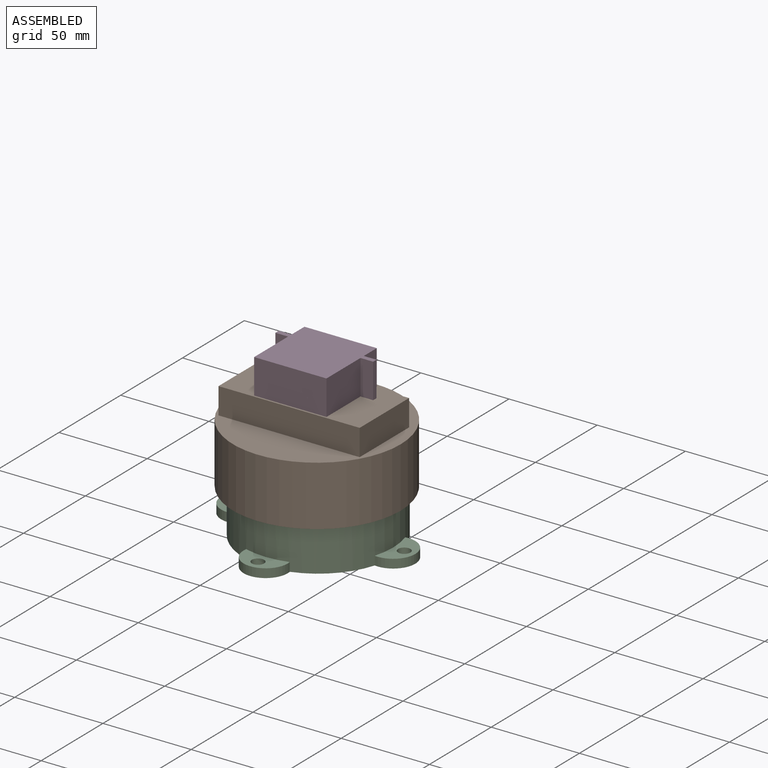
[diagram: assembled view]
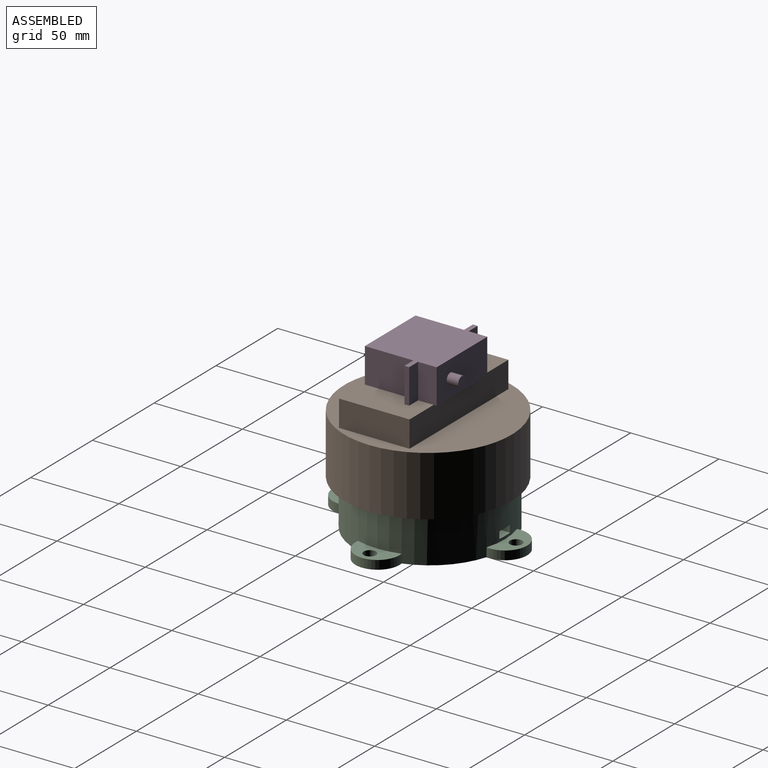
[diagram: assembled view, second angle]
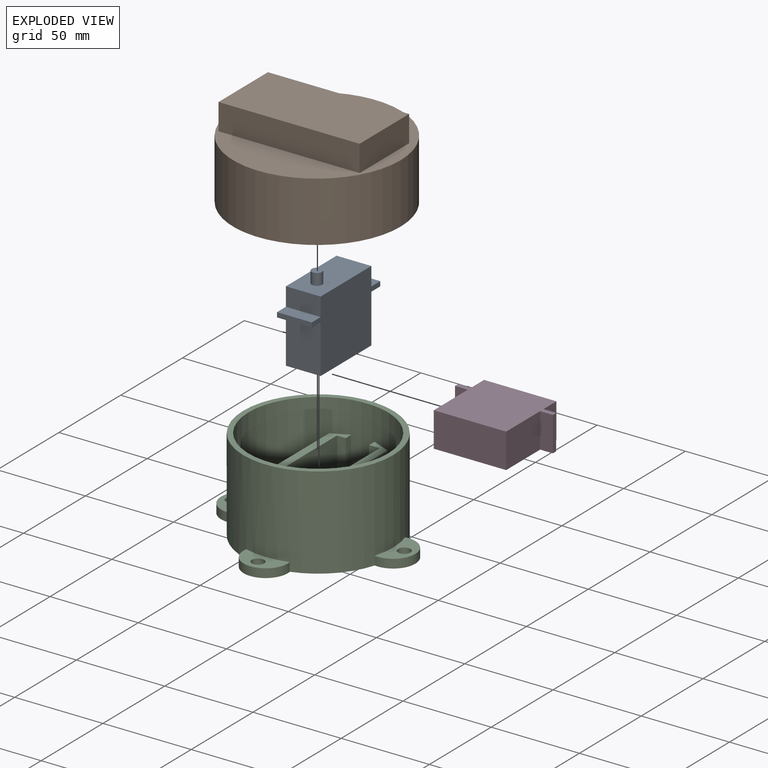
[diagram: exploded view]
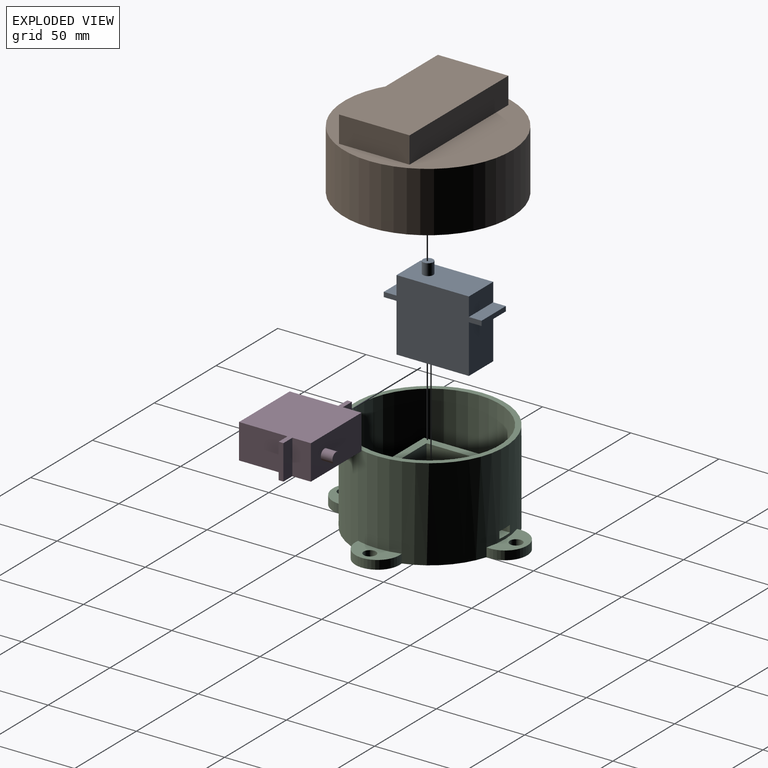
[diagram: exploded view, second angle]
ASSEMBLY  parts=4 mates=2
PART A: 18 faces, bbox 55.4x19.7x47.3 mm
  f0: plane 27.5x19.7mm, normal (-1,0,0), area 541.8mm2, adj f3,f5,f7,f11
  f1: plane 19.7x10.5mm, normal (1,0,0), area 206.8mm2, adj f3,f5,f6,f9
  f2: plane 27.5x19.7mm, normal (1,0,0), area 541.8mm2, adj f3,f5,f7,f8
  f3: plane 55.4x40.7mm, normal (0,1,0), area 1707.6mm2, adj f0,f1,f2,f4,f6,f7,f8,f9
  f4: plane 19.7x10.5mm, normal (-1,0,0), area 206.8mm2, adj f3,f5,f6,f12
  f5: plane 55.4x40.7mm, normal (0,-1,0), area 1707.6mm2, adj f0,f1,f2,f4,f6,f7,f8,f9
  f6: plane 41x19.7mm, normal (0,0,1), area 780.4mm2, adj f1,f3,f4,f5,f14
  f7: plane 41x19.7mm, normal (0,0,-1), area 780.4mm2, adj f0,f2,f3,f5,f16
  f8: plane 19.7x7.2mm, normal (0,0,-1), area 141.8mm2, adj f2,f3,f5,f10
  f9: plane 19.7x7.2mm, normal (0,0,1), area 141.8mm2, adj f1,f3,f5,f10
  f10: plane 19.7x2.7mm, normal (1,0,0), area 53.2mm2, adj f3,f5,f8,f9
  f11: plane 19.7x7.2mm, normal (0,0,-1), area 141.8mm2, adj f0,f3,f5,f13
  f12: plane 19.7x7.2mm, normal (0,0,1), area 141.8mm2, adj f3,f4,f5,f13
  f13: plane 19.7x2.7mm, normal (-1,0,0), area 53.2mm2, adj f3,f5,f11,f12
  f14: cylinder r=2.95mm len=6.6mm, axis (0,0,-1), area 122.3mm2, adj f6,f15
  f15: plane 5.9x5.9mm, normal (0,0,1), area 27.3mm2, adj f14
  f16: cylinder r=2.95mm len=5.9mm, axis (0,0,-1), area 0.2mm2, adj f7,f17
  f17: plane 5.9x5.9mm, normal (0,0,-1), area 27.3mm2, adj f16
PART B: 17 faces, bbox 95x95x49 mm
  f0: plane 90x90mm, normal (0,0,1), area 6010.7mm2, adj f4,f5,f6,f7,f8,f9,f10
  f1: plane 95x95mm, normal (0,0,-1), area 3888.2mm2, adj f2,f12,f13,f14,f15
  f2: cylinder r=47.5mm len=95mm, axis (0,0,-1), area 10147.3mm2, adj f1,f3
  f3: plane 95x95mm, normal (0,0,1), area 726.5mm2, adj f2,f4
  f4: cylinder r=45mm len=90mm, axis (0,0,1), area 8482.3mm2, adj f0,f3
  f5: plane 19.5x4mm, normal (0.2,0.98,0), area 79.6mm2, adj f0,f6,f10,f16
  f6: plane 19.5x4mm, normal (-0.2,0.98,0), area 79.6mm2, adj f0,f5,f7,f16
  f7: plane 5x4mm, normal (-1,0,0), area 20mm2, adj f0,f6,f8,f16
  f8: plane 19.5x4mm, normal (-0.2,-0.98,0), area 79.6mm2, adj f0,f7,f9,f16
  f9: plane 19.5x4mm, normal (0.2,-0.98,0), area 79.6mm2, adj f0,f8,f10,f16
  f10: plane 5x4mm, normal (1,0,0), area 20mm2, adj f0,f5,f9,f16
  f11: plane 80x40mm, normal (0,0,-1), area 3200mm2, adj f12,f13,f14,f15
  f12: plane 40x15mm, normal (-1,0,0), area 600mm2, adj f1,f11,f13,f15
  f13: plane 80x15mm, normal (0,-1,0), area 1200mm2, adj f1,f11,f12,f14
  f14: plane 40x15mm, normal (1,0,0), area 600mm2, adj f1,f11,f13,f15
  f15: plane 80x15mm, normal (0,1,0), area 1200mm2, adj f1,f11,f12,f14
  f16: plane 39x13mm, normal (0,0,1), area 351mm2, adj f5,f6,f7,f8,f9,f10
PART C: 51 faces, bbox 110x110x52.3 mm
  f0: cylinder r=42.5mm len=85mm, axis (0,0,-1), area 13430.1mm2, adj f3,f4,f7,f8,f9,f10,f40,f41
  f1: cylinder r=3mm len=8.3mm, axis (0,0,1), area 156.5mm2, adj f6,f38
  f2: cylinder r=3mm len=8.3mm, axis (0,0,1), area 156.5mm2, adj f6,f31
  f3: plane 85x85mm, normal (0,0,1), area 772.8mm2, adj f0,f5
  f4: plane 110x110mm, normal (0,0,-1), area 6433.8mm2, adj f0,f25,f26,f27,f28,f29,f30,f32
  f5: cylinder r=39.5mm len=79mm, axis (0,0,1), area 9927.4mm2, adj f3,f6
  f6: plane 79x79mm, normal (0,0,1), area 4279.8mm2, adj f1,f2,f5,f11,f12,f13,f14,f15
  f7: plane 14.89x4mm, normal (1,0,0), area 59.5mm2, adj f0,f8,f10,f24
  f8: plane 15.1x8.5mm, normal (0,0,1), area 127.7mm2, adj f0,f7,f9,f24
  f9: plane 14.89x4mm, normal (-1,0,0), area 59.5mm2, adj f0,f8,f10,f24
  f10: plane 15.1x8.5mm, normal (0,0,-1), area 127.7mm2, adj f0,f7,f9,f24
  f11: plane 23x9.41mm, normal (-0.42,0.91,0), area 239mm2, adj f6,f12,f22,f23
  f12: plane 47.41x23mm, normal (-1,0,0), area 1090.4mm2, adj f6,f11,f13,f23
  f13: plane 33x23mm, normal (0,-1,0), area 759mm2, adj f6,f12,f14,f23
  f14: plane 47.44x23mm, normal (1,0,0), area 1091.2mm2, adj f6,f13,f15,f23
  f15: plane 23x10.4mm, normal (0.39,0.92,0), area 259.5mm2, adj f6,f14,f16,f23
  f16: plane 23x4.41mm, normal (-1,0,0), area 101.4mm2, adj f6,f15,f17,f23
  f17: plane 23x6.06mm, normal (0,-1,0), area 139.5mm2, adj f6,f16,f18,f23
  f18: plane 43x23mm, normal (-1,0,0), area 989mm2, adj f6,f17,f19,f23
  f19: plane 24.26x23mm, normal (0,1,0), area 557.9mm2, adj f6,f18,f20,f23
  f20: plane 43x23mm, normal (1,0,0), area 989mm2, adj f6,f19,f21,f23
  f21: plane 23x5mm, normal (0,-1,0), area 115mm2, adj f6,f20,f22,f23
  f22: plane 23x4.41mm, normal (1,0,0), area 101.4mm2, adj f6,f11,f21,f23
  f23: plane 51.82x33mm, normal (0,0,1), area 565.4mm2, adj f11,f12,f13,f14,f15,f16,f17,f18
  f24: plane 8.5x4mm, normal (0,1,0), area 34mm2, adj f7,f8,f9,f10
  f25: plane 4.27x4mm, normal (-0.85,0.52,0), area 20mm2, adj f4,f26,f30,f31
  f26: plane 5x4mm, normal (0.02,1,0), area 20mm2, adj f4,f25,f27,f31
  f27: plane 4.39x4mm, normal (0.88,0.48,0), area 20mm2, adj f4,f26,f28,f31
  f28: plane 4.27x4mm, normal (0.85,-0.52,0), area 20mm2, adj f4,f27,f29,f31
  f29: plane 5x4mm, normal (-0.02,-1,0), area 20mm2, adj f4,f28,f30,f31
  f30: plane 4.39x4mm, normal (-0.88,-0.48,0), area 20mm2, adj f4,f25,f29,f31
  f31: plane 10x8.77mm, normal (0,0,-1), area 36.7mm2, adj f2,f25,f26,f27,f28,f29,f30
  f32: plane 4.27x4mm, normal (-0.85,0.52,0), area 20mm2, adj f4,f33,f37,f38
  f33: plane 5x4mm, normal (0.02,1,0), area 20mm2, adj f4,f32,f34,f38
  f34: plane 4.39x4mm, normal (0.88,0.48,0), area 20mm2, adj f4,f33,f35,f38
  f35: plane 4.27x4mm, normal (0.85,-0.52,0), area 20mm2, adj f4,f34,f36,f38
  f36: plane 5x4mm, normal (-0.02,-1,0), area 20mm2, adj f4,f35,f37,f38
  f37: plane 4.39x4mm, normal (-0.88,-0.48,0), area 20mm2, adj f4,f32,f36,f38
  f38: plane 10x8.77mm, normal (0,0,-1), area 36.7mm2, adj f1,f32,f33,f34,f35,f36,f37
  f39: cylinder r=3.5mm len=7mm, axis (0,0,-1), area 110mm2, adj f4,f41
  f40: cylinder r=12.5mm len=25mm, axis (0,0,-1), area 214.8mm2, adj f0,f4,f41
  f41: plane 25x14.34mm, normal (0,0,1), area 222.3mm2, adj f0,f39,f40
  f42: cylinder r=3.5mm len=7mm, axis (0,0,-1), area 110mm2, adj f4,f44
  f43: cylinder r=12.5mm len=25mm, axis (0,0,-1), area 214.8mm2, adj f0,f4,f44
  f44: plane 25x14.34mm, normal (0,0,1), area 222.3mm2, adj f0,f42,f43
  f45: cylinder r=12.5mm len=25mm, axis (0,0,-1), area 214.8mm2, adj f0,f4,f47
  f46: cylinder r=3.5mm len=7mm, axis (0,0,-1), area 110mm2, adj f4,f47
  f47: plane 25x14.34mm, normal (0,0,1), area 222.3mm2, adj f0,f45,f46
  f48: cylinder r=3.5mm len=7mm, axis (0,0,-1), area 110mm2, adj f4,f50
  f49: cylinder r=12.5mm len=25mm, axis (0,0,-1), area 214.8mm2, adj f0,f4,f50
  f50: plane 25x14.34mm, normal (0,0,1), area 222.3mm2, adj f0,f48,f49
PART D: same geometry as A
PLACE A rot(axis=(0,0,-1),90deg) t=(-77.5,0.53,41.48)mm
PLACE B rot(axis=(1,0,0),180deg) t=(-77.5,-8.97,88.78)mm fixed
PLACE C t=(-77.51,-7.86,29.18)mm
PLACE D rot(axis=(-1,0,0),90deg) t=(-77.5,-30.47,113.63)mm
MATE fastened A.f16 <-> C.f6  axis (0,0,-1) through (-77.5,-8.97,41.48)mm
MATE revolute B.f4 <-> A.f14  axis (0,0,-1) through (-77.5,-8.97,88.78)mm
